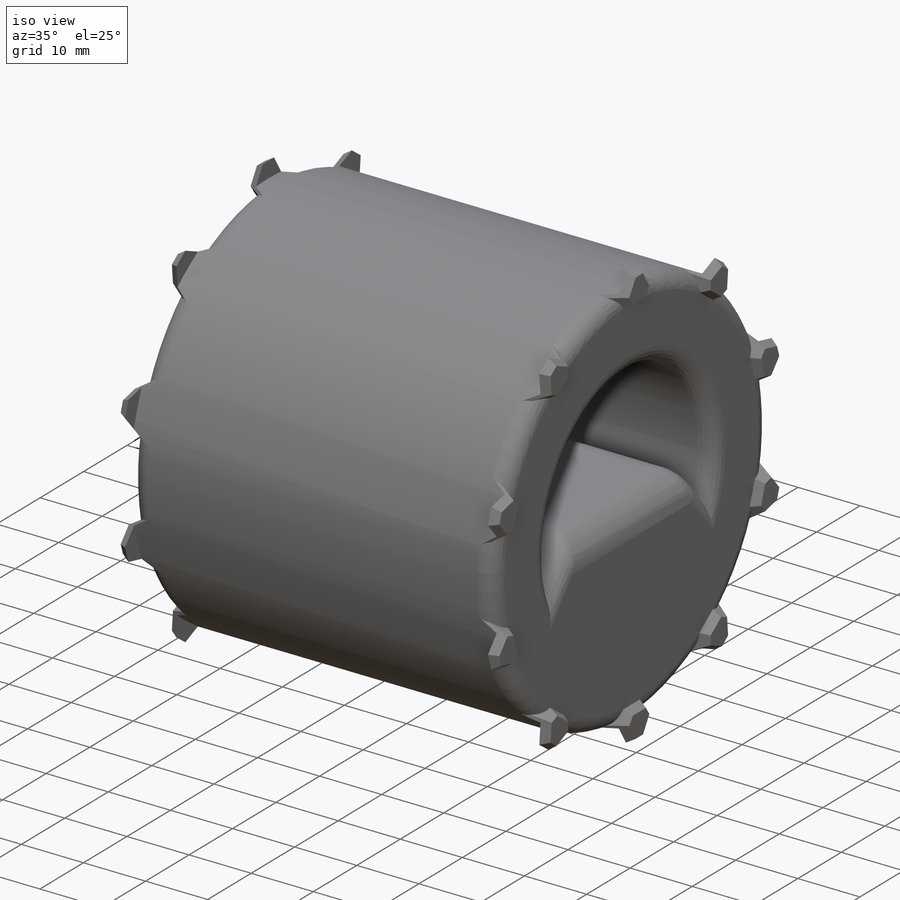
[diagram: iso view]
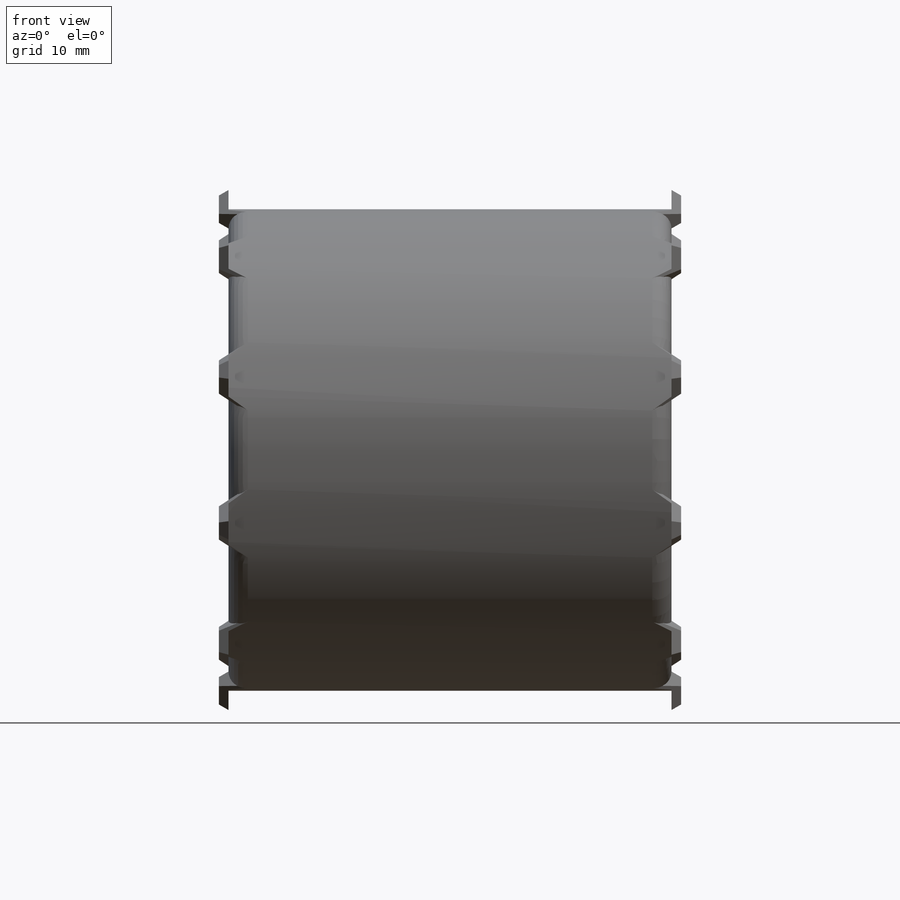
[diagram: front view]
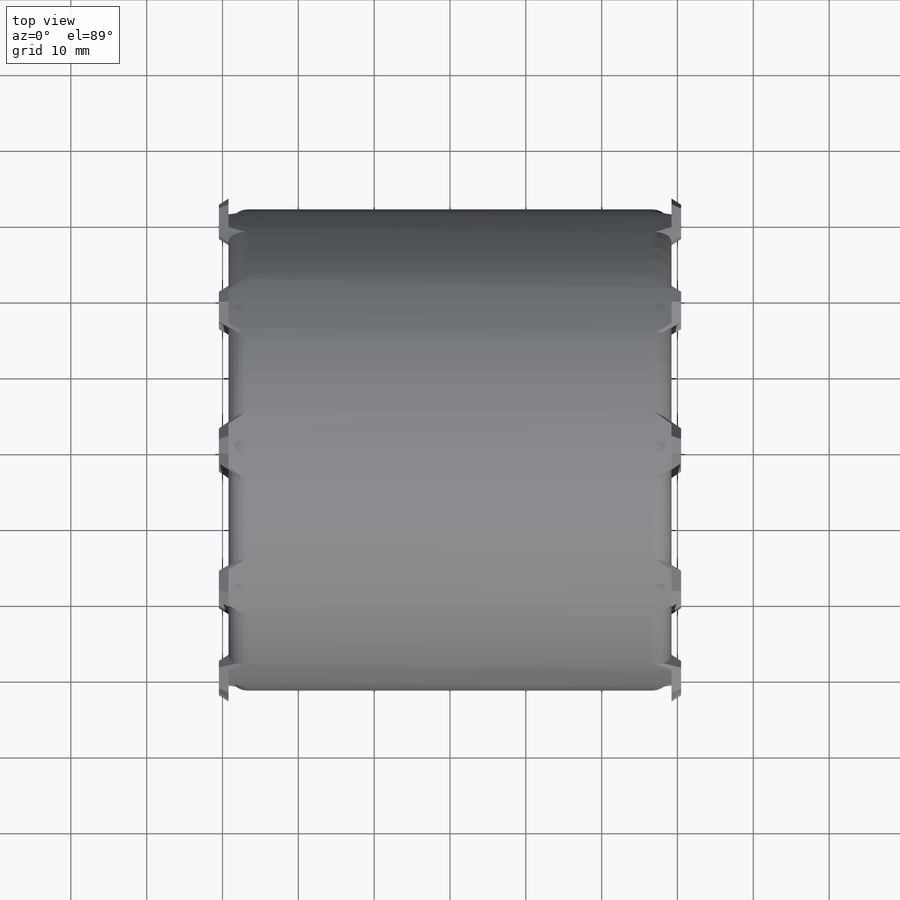
[diagram: top view]
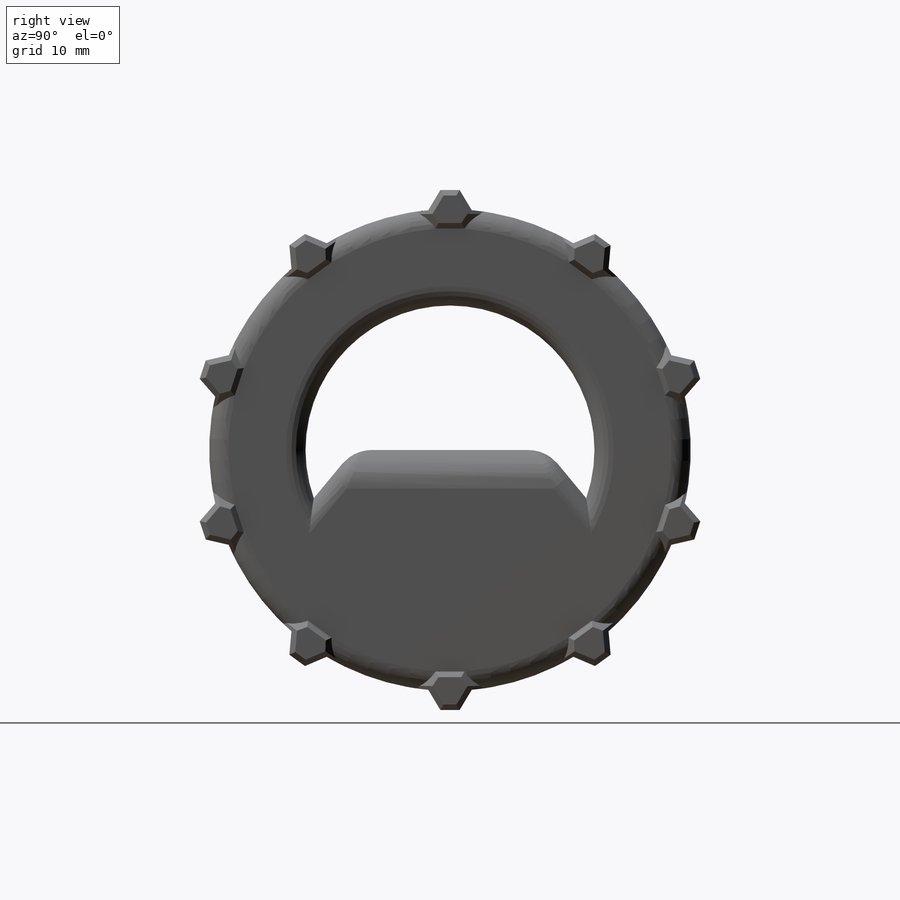
[diagram: right view]
SOLIDWORKS PART (.sldprt)
format: sldprt  version: not decoded by parser v0  size: 589,824 bytes
history: native  units: mm
features: fillet x3, sketch x2, extrude x2, material x1, pattern_circular x1, mirror x1 (+13 scaffold rows collapsed)
feature tree (23):
  scaffold x13  (default folders/planes/origin — collapsed)
  material  "Material <not specified>"
  sketch  "Sketch1"  dims[D1=63.5mm D2=38.1mm D3=25.4mm D4=6.35mm]
  extrude  "Boss-Extrude1"  Depth=58.42mm
  fillet  "Fillet1"  Radius=5.08mm
  fillet  "Fillet2"  Radius=2.54mm
  sketch  "Sketch2"  dims[D1=2.54mm D2=2.54mm D3=3.175mm D4=6.35mm D5=3.81mm D6=1.905mm]
  extrude  "Boss-Extrude2"  Depth=1.27mm
  pattern_circular  "CirPattern1"  Count=10  [1 undecoded]
  mirror  "Mirror2"
  fillet  "Fillet4"  Radius=2.54mm
decode coverage: 8 of 9 modeling features carry decoded parameters
note: 1 parameter value undecoded
note: suppression state not decoded; provenance and decode notes live in map.json
